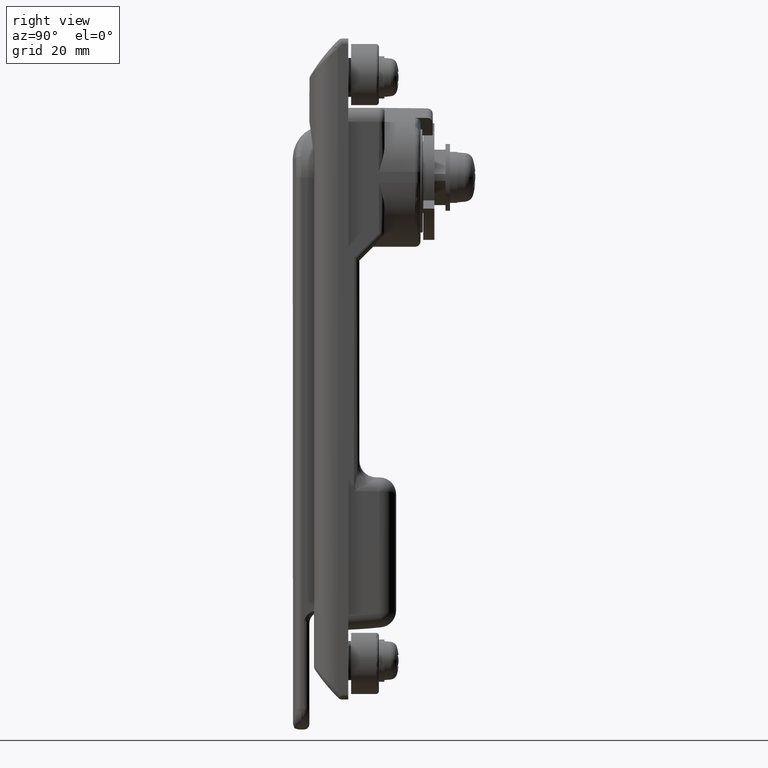
[diagram: clean part render]
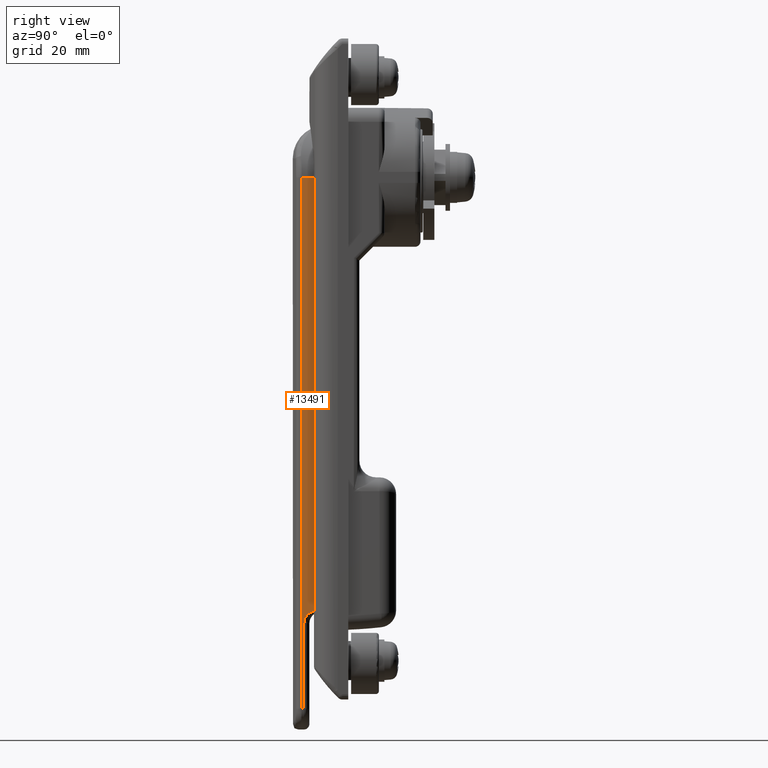
[diagram: same view with one face highlighted and labeled with its STEP entity id]
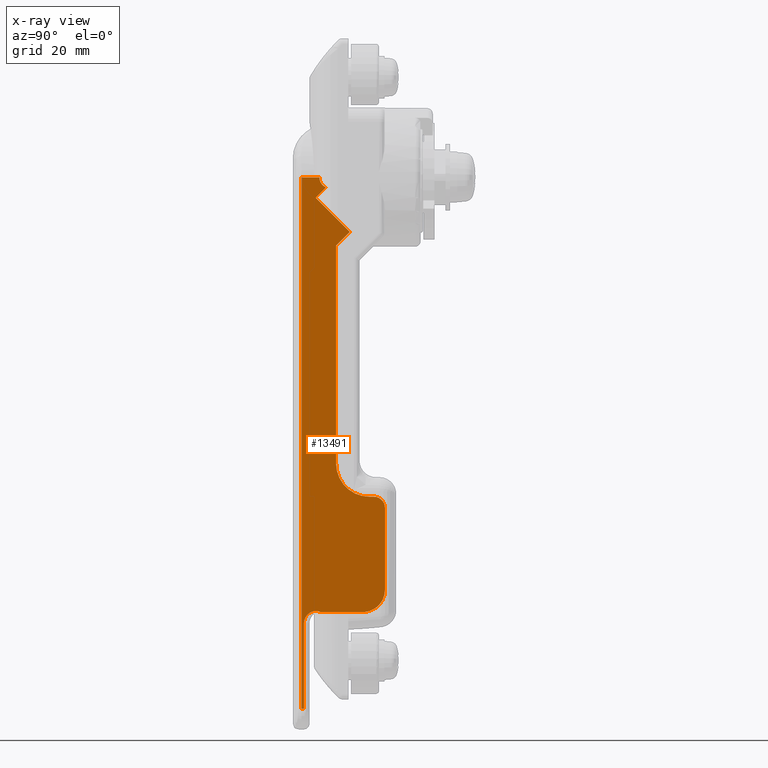
[diagram: x-ray of the same camera — body ghosted, the highlighted face saturated]
A machine part, right view. The second image highlights one B-rep face of the part: STEP entity #13491.
The next image is the same camera in x-ray: the body ghosted, the highlighted face saturated — about 0% of this face is hidden behind the body in this view.
In plain terms, the highlighted planar face has unit normal (-1, 0, 0).
Its self-contained STEP definition (entity closure, byte-faithful):
#13268 = ORIENTED_EDGE ( 'NONE', *, *, #13269, .T. ) ;
#13269 = EDGE_CURVE ( 'NONE', #13382, #13270, #21331, .T. ) ;
#13270 = VERTEX_POINT ( 'NONE', #21326 ) ;
#13271 = ORIENTED_EDGE ( 'NONE', *, *, #13272, .T. ) ;
#13272 = EDGE_CURVE ( 'NONE', #13270, #13273, #21325, .T. ) ;
#13273 = VERTEX_POINT ( 'NONE', #21321 ) ;
#13274 = ORIENTED_EDGE ( 'NONE', *, *, #13275, .F. ) ;
#13275 = EDGE_CURVE ( 'NONE', #13276, #13273, #21320, .T. ) ;
#13276 = VERTEX_POINT ( 'NONE', #21315 ) ;
#13277 = ORIENTED_EDGE ( 'NONE', *, *, #13278, .T. ) ;
#13278 = EDGE_CURVE ( 'NONE', #13276, #13279, #21314, .T. ) ;
#13279 = VERTEX_POINT ( 'NONE', #21286 ) ;
#13280 = ORIENTED_EDGE ( 'NONE', *, *, #13281, .T. ) ;
#13281 = EDGE_CURVE ( 'NONE', #13279, #13366, #21285, .T. ) ;
#13322 = VERTEX_POINT ( 'NONE', #21141 ) ;
#13344 = VERTEX_POINT ( 'NONE', #21222 ) ;
#13349 = EDGE_CURVE ( 'NONE', #13344, #13322, #21301, .T. ) ;
#13354 = EDGE_CURVE ( 'NONE', #13377, #13355, #21483, .T. ) ;
#13355 = VERTEX_POINT ( 'NONE', #21448 ) ;
#13356 = ORIENTED_EDGE ( 'NONE', *, *, #13357, .T. ) ;
#13357 = EDGE_CURVE ( 'NONE', #13355, #13358, #21442, .T. ) ;
#13358 = VERTEX_POINT ( 'NONE', #21443 ) ;
#13359 = ORIENTED_EDGE ( 'NONE', *, *, #13360, .T. ) ;
#13360 = EDGE_CURVE ( 'NONE', #13358, #13361, #21437, .T. ) ;
#13361 = VERTEX_POINT ( 'NONE', #21433 ) ;
#13362 = ORIENTED_EDGE ( 'NONE', *, *, #13379, .T. ) ;
#13363 = VERTEX_POINT ( 'NONE', #21432 ) ;
#13366 = VERTEX_POINT ( 'NONE', #21431 ) ;
#13367 = VERTEX_POINT ( 'NONE', #21587 ) ;
#13368 = ORIENTED_EDGE ( 'NONE', *, *, #13369, .T. ) ;
#13369 = EDGE_CURVE ( 'NONE', #13367, #13344, #21586, .T. ) ;
#13370 = ORIENTED_EDGE ( 'NONE', *, *, #13349, .T. ) ;
#13371 = ORIENTED_EDGE ( 'NONE', *, *, #13596, .T. ) ;
#13372 = ORIENTED_EDGE ( 'NONE', *, *, #13373, .T. ) ;
#13373 = EDGE_CURVE ( 'NONE', #13591, #13374, #21582, .T. ) ;
#13374 = VERTEX_POINT ( 'NONE', #21578 ) ;
#13375 = ORIENTED_EDGE ( 'NONE', *, *, #13376, .T. ) ;
#13376 = EDGE_CURVE ( 'NONE', #13374, #13377, #21577, .T. ) ;
#13377 = VERTEX_POINT ( 'NONE', #21573 ) ;
#13378 = ORIENTED_EDGE ( 'NONE', *, *, #13354, .T. ) ;
#13379 = EDGE_CURVE ( 'NONE', #13361, #13363, #21572, .T. ) ;
#13380 = ORIENTED_EDGE ( 'NONE', *, *, #13381, .T. ) ;
#13381 = EDGE_CURVE ( 'NONE', #13363, #13382, #21567, .T. ) ;
#13382 = VERTEX_POINT ( 'NONE', #21563 ) ;
#13491 = ADVANCED_FACE ( 'NONE', ( #21665 ), #21664, .F. ) ;
#13492 = EDGE_LOOP ( 'NONE', ( #13493, #13368, #13370, #13371, #13372, #13375, #13378, #13356, #13359, #13362, #13380, #13268, #13271, #13274, #13277, #13280 ) ) ;
#13493 = ORIENTED_EDGE ( 'NONE', *, *, #13494, .T. ) ;
#13494 = EDGE_CURVE ( 'NONE', #13366, #13367, #21659, .T. ) ;
#13591 = VERTEX_POINT ( 'NONE', #21843 ) ;
#13596 = EDGE_CURVE ( 'NONE', #13322, #13591, #21888, .T. ) ;
#20536 = DIRECTION ( 'NONE',  ( 0.0000000000000000000, 0.0000000000000000000, 1.000000000000000000 ) ) ;
#21141 = CARTESIAN_POINT ( 'NONE',  ( -22.69999999999940200, -9.400000000000000400, -4.376707486290435800E-012 ) ) ;
#21222 = CARTESIAN_POINT ( 'NONE',  ( -21.50677072879720000, -9.400000000000000400, -1.830060379105414900 ) ) ;
#21282 = DIRECTION ( 'NONE',  ( 0.7071067811860741700, 0.0000000000000000000, 0.7071067811870209700 ) ) ;
#21283 = VECTOR ( 'NONE', #21282, 999.9999999999998900 ) ;
#21284 = CARTESIAN_POINT ( 'NONE',  ( -19.69999999999960100, -9.400000000000000400, -12.29360748631999900 ) ) ;
#21285 = LINE ( 'NONE', #21284, #21283 ) ;
#21286 = CARTESIAN_POINT ( 'NONE',  ( -19.69999999999960100, -9.400000000000000400, -12.29360748631999900 ) ) ;
#21287 = DIRECTION ( 'NONE',  ( -1.451987153337282000E-015, 0.0000000000000000000, 1.000000000000000000 ) ) ;
#21288 = VECTOR ( 'NONE', #21287, 1000.000000000000000 ) ;
#21289 = CARTESIAN_POINT ( 'NONE',  ( -19.69999999999940200, -9.400000000000000400, -51.50000000000439800 ) ) ;
#21299 = DIRECTION ( 'NONE',  ( 0.0000000000000000000, 1.000000000000000000, 0.0000000000000000000 ) ) ;
#21300 = AXIS2_PLACEMENT_3D ( 'NONE', #21307, #21299, #20536 ) ;
#21301 = CIRCLE ( 'NONE', #21300, 2.000000000000000000 ) ;
#21307 = CARTESIAN_POINT ( 'NONE',  ( -20.69999999999939900, -9.400000000000000400, -4.482184554108485300E-012 ) ) ;
#21314 = LINE ( 'NONE', #21289, #21288 ) ;
#21315 = CARTESIAN_POINT ( 'NONE',  ( -19.69999999999940200, -9.400000000000000400, -51.50000000000439800 ) ) ;
#21316 = DIRECTION ( 'NONE',  ( 0.0000000000000000000, 0.0000000000000000000, 1.000000000000000000 ) ) ;
#21317 = DIRECTION ( 'NONE',  ( 0.0000000000000000000, -1.000000000000000000, 0.0000000000000000000 ) ) ;
#21318 = CARTESIAN_POINT ( 'NONE',  ( -13.69999999999940100, -9.400000000000000400, -51.50000000000439800 ) ) ;
#21319 = AXIS2_PLACEMENT_3D ( 'NONE', #21318, #21317, #21316 ) ;
#21320 = CIRCLE ( 'NONE', #21319, 5.999999999999998200 ) ;
#21321 = CARTESIAN_POINT ( 'NONE',  ( -13.69999999999945900, -9.400000000000000400, -57.50000000000439800 ) ) ;
#21322 = DIRECTION ( 'NONE',  ( -1.000000000000000000, 0.0000000000000000000, 1.821459649775799900E-013 ) ) ;
#21323 = VECTOR ( 'NONE', #21322, 1000.000000000000000 ) ;
#21324 = CARTESIAN_POINT ( 'NONE',  ( -12.89999999999951900, -9.400000000000000400, -57.50000000000450500 ) ) ;
#21325 = LINE ( 'NONE', #21324, #21323 ) ;
#21326 = CARTESIAN_POINT ( 'NONE',  ( -12.89999999999910000, -9.400000000000000400, -57.50000000000450500 ) ) ;
#21327 = DIRECTION ( 'NONE',  ( 0.0000000000000000000, 0.0000000000000000000, 1.000000000000000000 ) ) ;
#21328 = DIRECTION ( 'NONE',  ( 0.0000000000000000000, -1.000000000000000000, 0.0000000000000000000 ) ) ;
#21329 = CARTESIAN_POINT ( 'NONE',  ( -12.89999999999945900, -9.400000000000000400, -59.50000000000449800 ) ) ;
#21330 = AXIS2_PLACEMENT_3D ( 'NONE', #21329, #21328, #21327 ) ;
#21331 = CIRCLE ( 'NONE', #21330, 2.000000000000001800 ) ;
#21416 = CARTESIAN_POINT ( 'NONE',  ( -23.49833425626567900, -9.399999999999998600, -78.08584810022047400 ) ) ;
#21417 = CARTESIAN_POINT ( 'NONE',  ( -23.56452108516608800, -9.400000000000002100, -78.09085814084521400 ) ) ;
#21418 = CARTESIAN_POINT ( 'NONE',  ( -23.71666981844341700, -9.400000000000000400, -78.10927311044953600 ) ) ;
#21419 = CARTESIAN_POINT ( 'NONE',  ( -24.01181848170362100, -9.400000000000002100, -78.17300254891127100 ) ) ;
#21420 = CARTESIAN_POINT ( 'NONE',  ( -24.24911938742186700, -9.400000000000000400, -78.27374120916940100 ) ) ;
#21421 = CARTESIAN_POINT ( 'NONE',  ( -24.41925323531529600, -9.400000000000002100, -78.37235191800844800 ) ) ;
#21422 = CARTESIAN_POINT ( 'NONE',  ( -24.44053988477335100, -9.400000000000002100, -78.38512134958486400 ) ) ;
#21423 = CARTESIAN_POINT ( 'NONE',  ( -24.48001069916363200, -9.399999999999998600, -78.40972508827557900 ) ) ;
#21424 = CARTESIAN_POINT ( 'NONE',  ( -24.53849732480425400, -9.400000000000000400, -78.44750825799954400 ) ) ;
#21425 = CARTESIAN_POINT ( 'NONE',  ( -24.66992894635204100, -9.399999999999998600, -78.54181191917003000 ) ) ;
#21426 = CARTESIAN_POINT ( 'NONE',  ( -24.91264350299295700, -9.400000000000000400, -78.75499096876960400 ) ) ;
#21427 = CARTESIAN_POINT ( 'NONE',  ( -25.08614394619148400, -9.400000000000003900, -78.97983882944102200 ) ) ;
#21428 = CARTESIAN_POINT ( 'NONE',  ( -25.21153842366200200, -9.399999999999998600, -79.19061369167533800 ) ) ;
#21429 = CARTESIAN_POINT ( 'NONE',  ( -25.23705096780276200, -9.400000000000000400, -79.23655100632852600 ) ) ;
#21430 = CARTESIAN_POINT ( 'NONE',  ( -25.28274979404117700, -9.400000000000000400, -79.32557960147171600 ) ) ;
#21431 = CARTESIAN_POINT ( 'NONE',  ( -17.23517677217839900, -9.400000000000000400, -9.828784258495499400 ) ) ;
#21432 = CARTESIAN_POINT ( 'NONE',  ( -10.89999999999945900, -9.400000000000000400, -74.27388504717289700 ) ) ;
#21433 = CARTESIAN_POINT ( 'NONE',  ( -14.58859060402631900, -9.400000000000000400, -78.26174464702080500 ) ) ;
#21434 = DIRECTION ( 'NONE',  ( 1.000000000000000000, 0.0000000000000000000, 0.0000000000000000000 ) ) ;
#21435 = VECTOR ( 'NONE', #21434, 1000.000000000000000 ) ;
#21436 = CARTESIAN_POINT ( 'NONE',  ( -22.49999999999940300, -9.400000000000000400, -78.26174464702080500 ) ) ;
#21437 = LINE ( 'NONE', #21436, #21435 ) ;
#21438 = CARTESIAN_POINT ( 'NONE',  ( -25.34640542000234500, -9.400000000000000400, -79.46005880222972500 ) ) ;
#21439 = CARTESIAN_POINT ( 'NONE',  ( -25.46068692013662700, -9.400000000000003900, -79.78039776030090000 ) ) ;
#21440 = CARTESIAN_POINT ( 'NONE',  ( -25.49993113092292800, -9.400000000000003900, -80.06620970659460600 ) ) ;
#21441 = CARTESIAN_POINT ( 'NONE',  ( -25.49999999999940300, -9.400000000000000400, -80.26174464702080500 ) ) ;
#21442 = B_SPLINE_CURVE_WITH_KNOTS ( 'NONE', 3,
 ( #21441, #21440, #21439, #21438, #21430, #21429, #21428, #21427, #21426, #21425, #21424, #21423, #21422, #21421, #21420, #21419, #21418, #21417, #21416, #21592, #21591, #21590, #21589, #21588 ),
 .UNSPECIFIED., .F., .F.,
 ( 4, 1, 1, 2, 2, 1, 1, 1, 2, 2, 1, 1, 1, 2, 2, 4 ),
 ( 0.0000000000000000000, 0.1249999999999905400, 0.1874999999999855100, 0.2187499999999789300, 0.2499999999999723800, 0.3749999999999613600, 0.4374999999999583100, 0.4687499999999530400, 0.4843749999999529300, 0.4999999999999528700, 0.6249999999999681400, 0.6874999999999755800, 0.7187499999999789100, 0.7343749999999804600, 0.7499999999999820100, 1.000000000000000000 ),
 .UNSPECIFIED. ) ;
#21443 = CARTESIAN_POINT ( 'NONE',  ( -22.49999999999940300, -9.400000000000000400, -78.26174464702080500 ) ) ;
#21444 = CARTESIAN_POINT ( 'NONE',  ( -25.49999999999940300, -9.400000000000000400, -80.26174464702080500 ) ) ;
#21445 = CARTESIAN_POINT ( 'NONE',  ( -25.49999999999940300, -9.400000000000000400, -85.39680294431670400 ) ) ;
#21446 = CARTESIAN_POINT ( 'NONE',  ( -25.49999999999940300, -9.400000000000000400, -90.53186124161260300 ) ) ;
#21447 = CARTESIAN_POINT ( 'NONE',  ( -25.49999999999940300, -9.400000000000000400, -95.66691953890860100 ) ) ;
#21448 = CARTESIAN_POINT ( 'NONE',  ( -25.49999999999940300, -9.400000000000000400, -80.26174464702080500 ) ) ;
#21483 = B_SPLINE_CURVE_WITH_KNOTS ( 'NONE', 3,
 ( #21447, #21446, #21445, #21444 ),
 .UNSPECIFIED., .F., .F.,
 ( 4, 4 ),
 ( 0.0000000000000000000, 1.000000000000000000 ),
 .UNSPECIFIED. ) ;
#21563 = CARTESIAN_POINT ( 'NONE',  ( -10.89999999999959900, -9.400000000000000400, -59.50000000000449800 ) ) ;
#21564 = DIRECTION ( 'NONE',  ( 7.045093976723300100E-016, 0.0000000000000000000, 1.000000000000000000 ) ) ;
#21565 = VECTOR ( 'NONE', #21564, 1000.000000000000000 ) ;
#21566 = CARTESIAN_POINT ( 'NONE',  ( -10.89999999999959900, -9.400000000000000400, -74.27388504717279700 ) ) ;
#21567 = LINE ( 'NONE', #21566, #21565 ) ;
#21568 = DIRECTION ( 'NONE',  ( 0.0000000000000000000, 0.0000000000000000000, 1.000000000000000000 ) ) ;
#21569 = DIRECTION ( 'NONE',  ( 0.0000000000000000000, -1.000000000000000000, 0.0000000000000000000 ) ) ;
#21570 = CARTESIAN_POINT ( 'NONE',  ( -14.89999999999945900, -9.400000000000000400, -74.27388504717279700 ) ) ;
#21571 = AXIS2_PLACEMENT_3D ( 'NONE', #21570, #21569, #21568 ) ;
#21572 = CIRCLE ( 'NONE', #21571, 4.000000000000003600 ) ;
#21573 = CARTESIAN_POINT ( 'NONE',  ( -25.49999999999940300, -9.400000000000000400, -95.66691953890860100 ) ) ;
#21574 = DIRECTION ( 'NONE',  ( 1.000000000000000000, 0.0000000000000000000, 0.0000000000000000000 ) ) ;
#21575 = VECTOR ( 'NONE', #21574, 1000.000000000000000 ) ;
#21576 = CARTESIAN_POINT ( 'NONE',  ( 0.0000000000000000000, -9.400000000000000400, -95.66691953890860100 ) ) ;
#21577 = LINE ( 'NONE', #21576, #21575 ) ;
#21578 = CARTESIAN_POINT ( 'NONE',  ( -25.89897259376675000, -9.400000000000000400, -95.66691953890860100 ) ) ;
#21579 = DIRECTION ( 'NONE',  ( 0.0000000000000000000, 0.0000000000000000000, -1.000000000000000000 ) ) ;
#21580 = VECTOR ( 'NONE', #21579, 1000.000000000000000 ) ;
#21581 = CARTESIAN_POINT ( 'NONE',  ( -25.89897259376675000, -9.400000000000000400, 0.0000000000000000000 ) ) ;
#21582 = LINE ( 'NONE', #21581, #21580 ) ;
#21583 = DIRECTION ( 'NONE',  ( 0.7071067811860741700, 0.0000000000000000000, 0.7071067811870209700 ) ) ;
#21584 = VECTOR ( 'NONE', #21583, 999.9999999999998900 ) ;
#21585 = CARTESIAN_POINT ( 'NONE',  ( -21.12805213681970400, -9.400000000000000400, -1.451341787127371900 ) ) ;
#21586 = LINE ( 'NONE', #21585, #21584 ) ;
#21587 = CARTESIAN_POINT ( 'NONE',  ( -23.37033569018569800, -9.400000000000000400, -3.693625340496399500 ) ) ;
#21588 = CARTESIAN_POINT ( 'NONE',  ( -22.49999999999940300, -9.400000000000000400, -78.26174464702080500 ) ) ;
#21589 = CARTESIAN_POINT ( 'NONE',  ( -22.77406014983460000, -9.400000000000002100, -78.13099816900847800 ) ) ;
#21590 = CARTESIAN_POINT ( 'NONE',  ( -23.07716773343166500, -9.400000000000000400, -78.07088651033215900 ) ) ;
#21591 = CARTESIAN_POINT ( 'NONE',  ( -23.43008243937552800, -9.399999999999998600, -78.08206736853313100 ) ) ;
#21592 = CARTESIAN_POINT ( 'NONE',  ( -23.45399187501553600, -9.399999999999996800, -78.08314853740522200 ) ) ;
#21656 = DIRECTION ( 'NONE',  ( -0.7071067811870189700, 0.0000000000000000000, 0.7071067811860760600 ) ) ;
#21657 = VECTOR ( 'NONE', #21656, 1000.000000000000000 ) ;
#21658 = CARTESIAN_POINT ( 'NONE',  ( -17.23517677217839900, -9.400000000000000400, -9.828784258495510100 ) ) ;
#21659 = LINE ( 'NONE', #21658, #21657 ) ;
#21660 = DIRECTION ( 'NONE',  ( 1.000000000000000000, 0.0000000000000000000, 0.0000000000000000000 ) ) ;
#21661 = DIRECTION ( 'NONE',  ( 0.0000000000000000000, 1.000000000000000000, 0.0000000000000000000 ) ) ;
#21662 = CARTESIAN_POINT ( 'NONE',  ( 0.0000000000000000000, -9.400000000000000400, 0.0000000000000000000 ) ) ;
#21663 = AXIS2_PLACEMENT_3D ( 'NONE', #21662, #21661, #21660 ) ;
#21664 = PLANE ( 'NONE',  #21663 ) ;
#21665 = FACE_OUTER_BOUND ( 'NONE', #13492, .T. ) ;
#21843 = CARTESIAN_POINT ( 'NONE',  ( -25.89897259376675000, -9.400000000000000400, -4.376707329889485900E-012 ) ) ;
#21885 = DIRECTION ( 'NONE',  ( -1.000000000000000000, 0.0000000000000000000, 0.0000000000000000000 ) ) ;
#21886 = VECTOR ( 'NONE', #21885, 1000.000000000000000 ) ;
#21887 = CARTESIAN_POINT ( 'NONE',  ( -20.67555829520620100, -9.400000000000000400, -4.376707329889485900E-012 ) ) ;
#21888 = LINE ( 'NONE', #21887, #21886 ) ;